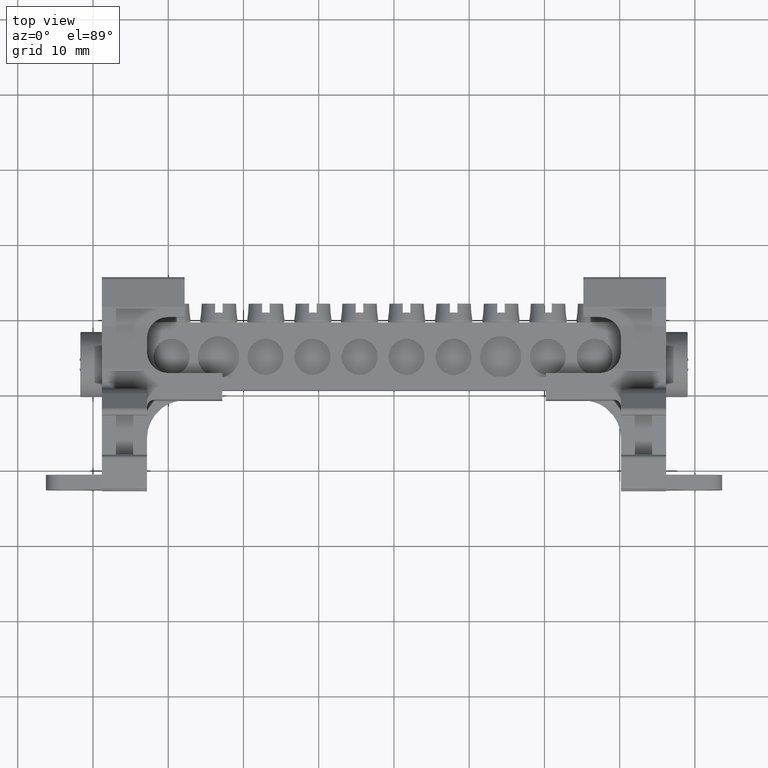
[diagram: clean part render]
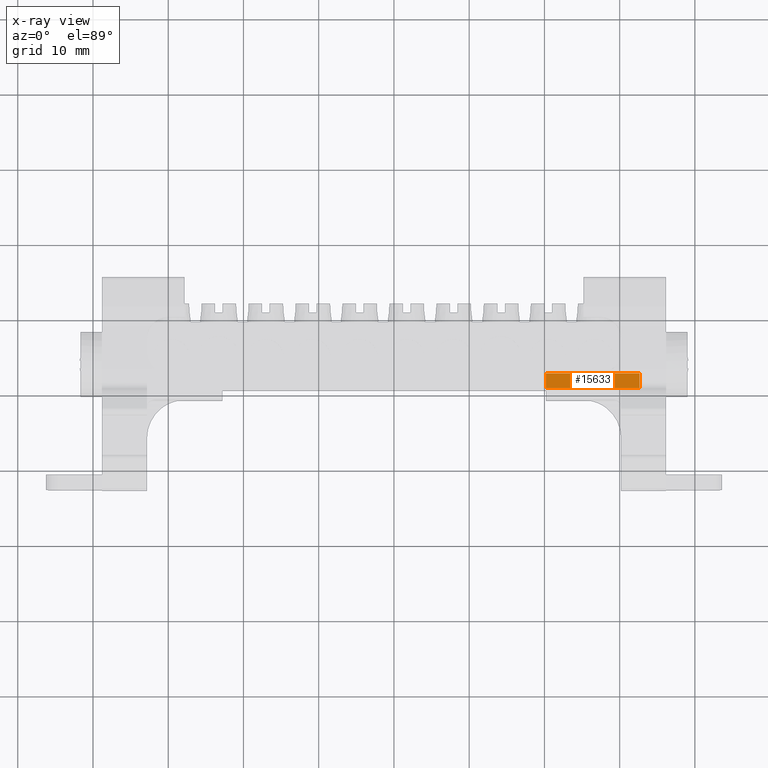
[diagram: x-ray — body ghosted, one internal face saturated and labeled with its STEP entity id]
A machine part, top view, then the same camera in x-ray: the body is ghosted and one INTERNAL B-rep face — a face not visible from any outside direction — is saturated and labeled: STEP entity #15633.
In plain terms, the highlighted planar face has unit normal (0, -0.1911, -0.9816).
Its self-contained STEP definition (entity closure, byte-faithful):
#564 = AXIS2_PLACEMENT_3D ( 'NONE', #14703, #14705, #14786 ) ;
#3865 = VERTEX_POINT ( 'NONE', #16546 ) ;
#4022 = VERTEX_POINT ( 'NONE', #16686 ) ;
#4026 = VERTEX_POINT ( 'NONE', #16716 ) ;
#4042 = VERTEX_POINT ( 'NONE', #16730 ) ;
#4049 = VERTEX_POINT ( 'NONE', #16177 ) ;
#4909 = ORIENTED_EDGE ( 'NONE', *, *, #10448, .T. ) ;
#4913 = ORIENTED_EDGE ( 'NONE', *, *, #10395, .F. ) ;
#4933 = ORIENTED_EDGE ( 'NONE', *, *, #10360, .T. ) ;
#4937 = ORIENTED_EDGE ( 'NONE', *, *, #10460, .F. ) ;
#4955 = ORIENTED_EDGE ( 'NONE', *, *, #10454, .T. ) ;
#8374 = EDGE_LOOP ( 'NONE', ( #4909, #4913, #4955, #4933, #4937 ) ) ;
#9691 = LINE ( 'NONE', #9781, #13578 ) ;
#9781 = CARTESIAN_POINT ( 'NONE',  ( -52.44940069598970200, -97.27597067425409700, 219.2635482728030400 ) ) ;
#9828 = DIRECTION ( 'NONE',  ( 1.000000000000000000, 8.427824545675330500E-016, 4.329711626542373400E-015 ) ) ;
#10360 = EDGE_CURVE ( 'NONE', #3865, #4022, #9691, .T. ) ;
#10395 = EDGE_CURVE ( 'NONE', #4049, #4042, #13138, .T. ) ;
#10448 = EDGE_CURVE ( 'NONE', #4026, #4042, #13057, .T. ) ;
#10454 = EDGE_CURVE ( 'NONE', #4049, #3865, #13078, .T. ) ;
#10460 = EDGE_CURVE ( 'NONE', #4026, #4022, #13080, .T. ) ;
#13020 = CARTESIAN_POINT ( 'NONE',  ( -69.82164581438651400, -97.27597067425396900, 219.2635482728030100 ) ) ;
#13026 = DIRECTION ( 'NONE',  ( 1.366457172483842100E-014, -0.9815773931605403800, 0.1910649660093596300 ) ) ;
#13057 = LINE ( 'NONE', #13083, #13683 ) ;
#13066 = DIRECTION ( 'NONE',  ( -1.000000000000000000, -1.100161628464490100E-014, -2.352285033424555200E-015 ) ) ;
#13078 = LINE ( 'NONE', #13088, #13660 ) ;
#13079 = DIRECTION ( 'NONE',  ( 1.000000000000000000, 8.427824545675330500E-016, 4.329711626542373400E-015 ) ) ;
#13080 = LINE ( 'NONE', #13089, #13702 ) ;
#13083 = CARTESIAN_POINT ( 'NONE',  ( -52.44940069598970200, -99.26975768105300800, 219.6516407954491100 ) ) ;
#13088 = CARTESIAN_POINT ( 'NONE',  ( -52.44940069598970200, -97.27597067425396900, 219.2635482728030100 ) ) ;
#13089 = CARTESIAN_POINT ( 'NONE',  ( -57.35164581438638000, -99.26975768105302200, 219.6516407954493400 ) ) ;
#13090 = DIRECTION ( 'NONE',  ( -1.024842879363015600E-014, 0.9815773931605116200, -0.1910649660095075900 ) ) ;
#13138 = LINE ( 'NONE', #13020, #13611 ) ;
#13578 = VECTOR ( 'NONE', #9828, 1000.000000000000000 ) ;
#13611 = VECTOR ( 'NONE', #13026, 1000.000000000000200 ) ;
#13660 = VECTOR ( 'NONE', #13079, 1000.000000000000000 ) ;
#13683 = VECTOR ( 'NONE', #13066, 1000.000000000000000 ) ;
#13702 = VECTOR ( 'NONE', #13090, 1000.000000000000200 ) ;
#14703 = CARTESIAN_POINT ( 'NONE',  ( -52.44940069598970200, -97.27597067425392700, 219.2635482728030100 ) ) ;
#14705 = DIRECTION ( 'NONE',  ( 4.410973252553576800E-015, -0.1910649660094025600, -0.9815773931605321600 ) ) ;
#14743 = FACE_OUTER_BOUND ( 'NONE', #8374, .T. ) ;
#14746 = PLANE ( 'NONE',  #564 ) ;
#14786 = DIRECTION ( 'NONE',  ( 0.0000000000000000000, 0.9815773931605320500, -0.1910649660094025400 ) ) ;
#15633 = ADVANCED_FACE ( 'NONE', ( #14743 ), #14746, .T. ) ;
#16177 = CARTESIAN_POINT ( 'NONE',  ( -69.82164581438651400, -97.27597067425394100, 219.2635482728030100 ) ) ;
#16546 = CARTESIAN_POINT ( 'NONE',  ( -62.59364581438654800, -97.27597067425402600, 219.2635482728030400 ) ) ;
#16686 = CARTESIAN_POINT ( 'NONE',  ( -57.35164581438640900, -97.27597067425409700, 219.2635482728030400 ) ) ;
#16716 = CARTESIAN_POINT ( 'NONE',  ( -57.35164581438641600, -99.26975768105305100, 219.6516407954492300 ) ) ;
#16730 = CARTESIAN_POINT ( 'NONE',  ( -69.82164581438648600, -99.26975768105322100, 219.6516407954490800 ) ) ;